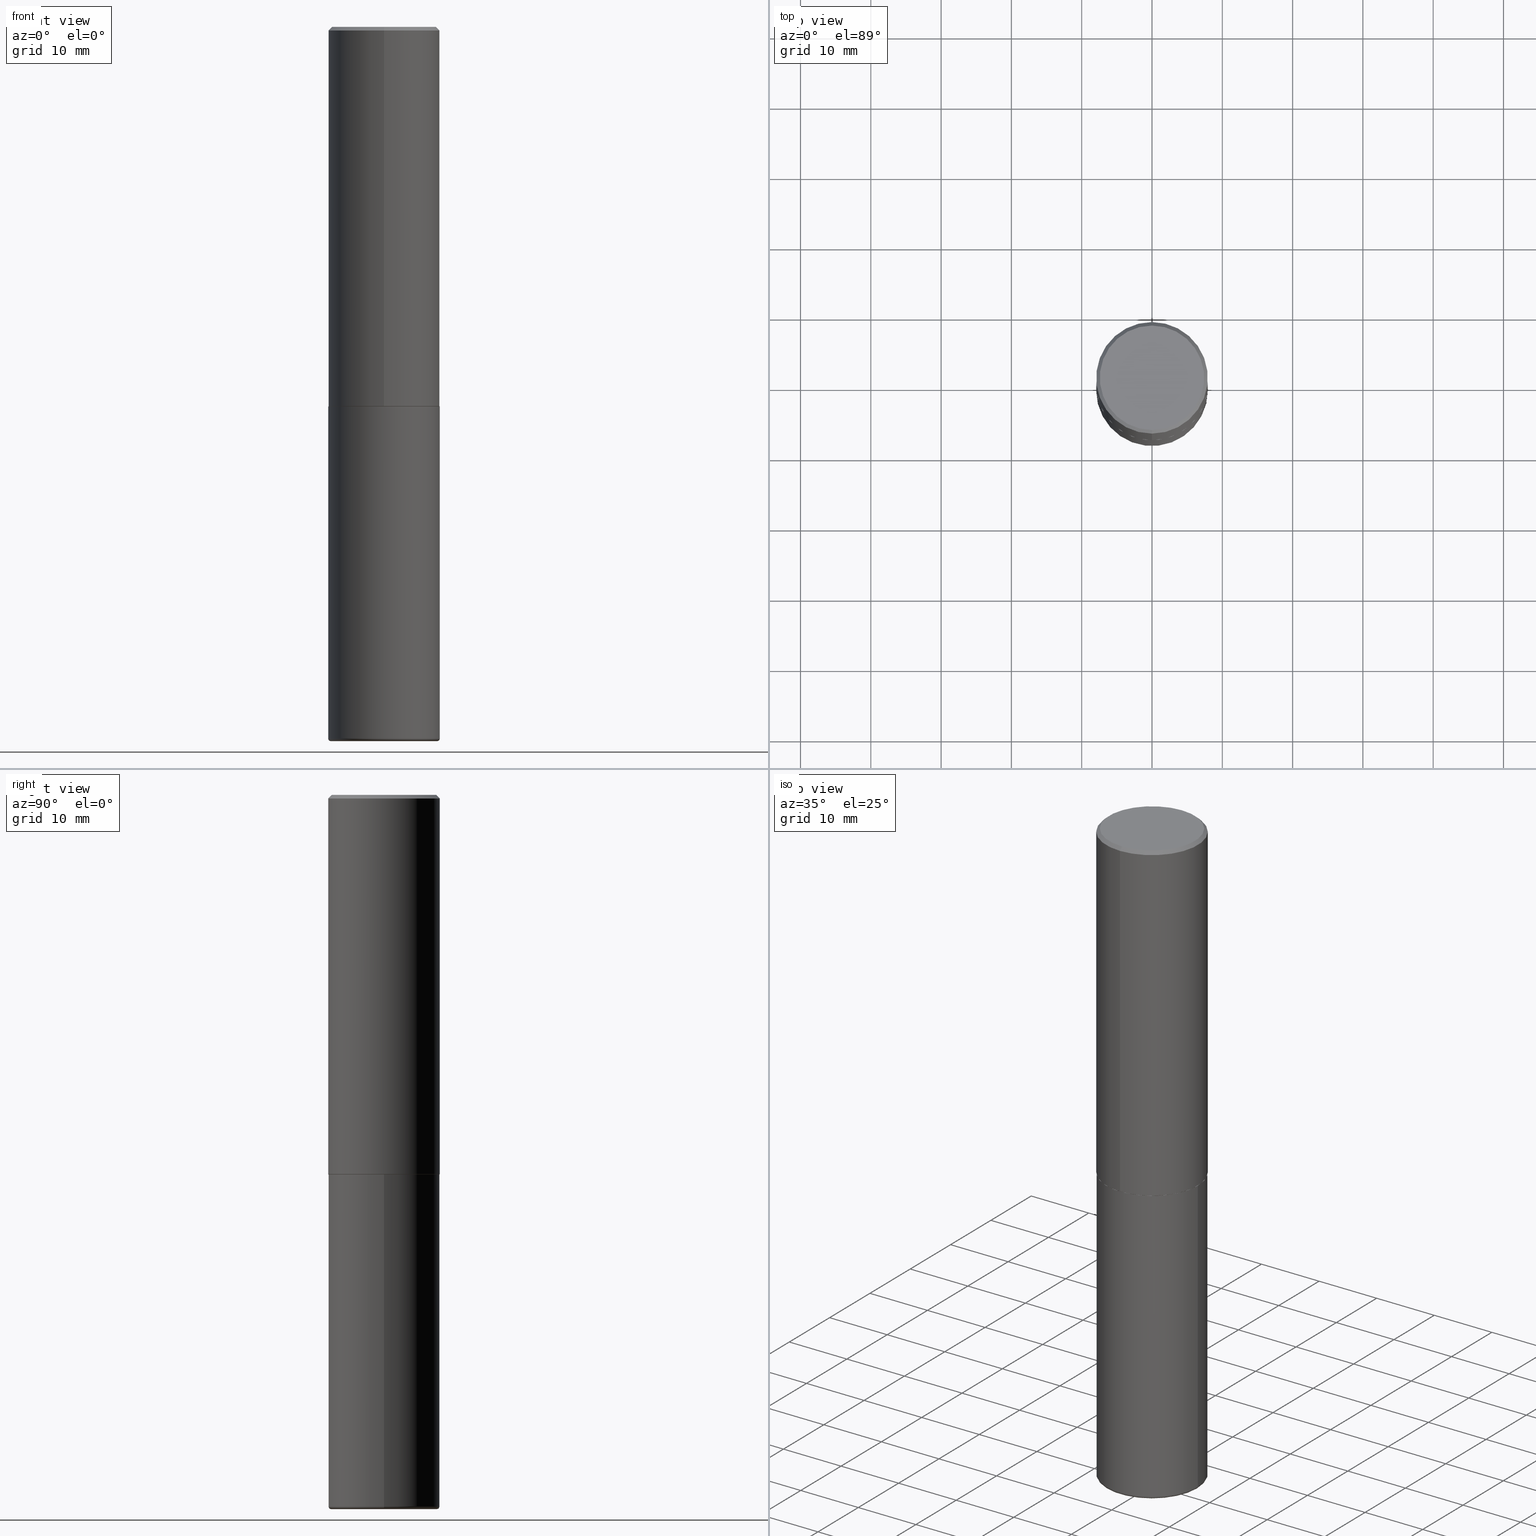
[diagram: canonical four-view strip — front | top / right | iso, engineering-drawing reading convention]
A machine part, canonical four-view strip (front | top / right | iso — engineering-drawing reading convention). The complete STEP part file that produces these views, byte-faithful:
ISO-10303-21;
HEADER;
FILE_DESCRIPTION (( 'STEP AP203' ),
    '1' );
FILE_NAME ('37582.STEP',
    '2024-03-02T04:54:05',
    ( '' ),
    ( '' ),
    'SwSTEP 2.0',
    'SolidWorks 2023',
    '' );
FILE_SCHEMA (( 'CONFIG_CONTROL_DESIGN' ));
ENDSEC;

DATA;
#1 = VERTEX_POINT ( 'NONE', #69 ) ;
#2 = CIRCLE ( 'NONE', #49, 0.3125000000000002776 ) ;
#3 = DIRECTION ( 'NONE',  ( -2.444852431726452894E-29, 3.492364022149836358E-15, 1.000000000000000000 ) ) ;
#4 = EDGE_LOOP ( 'NONE', ( #259, #286, #116, #358 ) ) ;
#5 = DIRECTION ( 'NONE',  ( -6.982962677686265922E-15, -1.000000000000000000, 3.496765431890253764E-15 ) ) ;
#6 = EDGE_CURVE ( 'NONE', #7, #383, #271, .T. ) ;
#7 = VERTEX_POINT ( 'NONE', #266 ) ;
#8 = DIMENSIONAL_EXPONENTS ( 1.000000000000000000, 0.000000000000000000, 0.000000000000000000, 0.000000000000000000, 0.000000000000000000, 0.000000000000000000, 0.000000000000000000 ) ;
#9 = COORDINATED_UNIVERSAL_TIME_OFFSET ( 5, 0, .BEHIND. ) ;
#10 = CARTESIAN_POINT ( 'NONE',  ( 5.195311417418712329E-29, -7.421273547068401324E-15, -2.124999999999999556 ) ) ;
#11 = CARTESIAN_POINT ( 'NONE',  ( 5.195311417418712329E-29, -7.421273547068401324E-15, -2.124999999999999556 ) ) ;
#12 = DATE_AND_TIME ( #269, #65 ) ;
#13 = CIRCLE ( 'NONE', #378, 0.01500000000000014690 ) ;
#14 = DIRECTION ( 'NONE',  ( -1.000000000000000000, 6.982962677686265922E-15, -4.876176775795935793E-29 ) ) ;
#15 = CONICAL_SURFACE ( 'NONE', #272, 0.3114999999999999991, 0.7853981633975507526 ) ;
#16 = APPROVAL ( #373, 'UNSPECIFIED' ) ;
#17 = CALENDAR_DATE ( 2024, 1, 3 ) ;
#18 = CALENDAR_DATE ( 2024, 1, 3 ) ;
#19 = AXIS2_PLACEMENT_3D ( 'NONE', #334, #77, #390 ) ;
#20 = PERSON_AND_ORGANIZATION ( #364, #243 ) ;
#21 = AXIS2_PLACEMENT_3D ( 'NONE', #395, #170, #357 ) ;
#22 = EDGE_CURVE ( 'NONE', #393, #166, #106, .T. ) ;
#23 = LINE ( 'NONE', #318, #400 ) ;
#24 = ORIENTED_EDGE ( 'NONE', *, *, #342, .T. ) ;
#25 = CARTESIAN_POINT ( 'NONE',  ( 4.889704863452922148E-31, -6.984728044299695791E-17, -0.02000000000000006981 ) ) ;
#26 = ORIENTED_EDGE ( 'NONE', *, *, #126, .T. ) ;
#27 = PLANE ( 'NONE',  #337 ) ;
#28 = EDGE_CURVE ( 'NONE', #393, #383, #13, .T. ) ;
#29 = ORIENTED_EDGE ( 'NONE', *, *, #403, .T. ) ;
#30 = CC_DESIGN_APPROVAL ( #398, ( #401 ) ) ;
#31 = DIRECTION ( 'NONE',  ( -2.445468806185136597E-29, 3.491481338843145583E-15, 1.000000000000000000 ) ) ;
#32 = EDGE_LOOP ( 'NONE', ( #43, #88, #132, #147 ) ) ;
#33 = CARTESIAN_POINT ( 'NONE',  ( 0.000000000000000000, 0.000000000000000000, 0.000000000000000000 ) ) ;
#34 = ORIENTED_EDGE ( 'NONE', *, *, #78, .T. ) ;
#35 = CARTESIAN_POINT ( 'NONE',  ( 5.192866564986985411E-29, -7.417781183046251262E-15, -2.123999999999999666 ) ) ;
#36 = DIRECTION ( 'NONE',  ( 1.000000000000000000, -6.982962677686199657E-15, 0.000000000000000000 ) ) ;
#37 = AXIS2_PLACEMENT_3D ( 'NONE', #321, #123, #376 ) ;
#38 = EDGE_CURVE ( 'NONE', #1, #200, #308, .T. ) ;
#39 = UNCERTAINTY_MEASURE_WITH_UNIT (LENGTH_MEASURE( 1.000000000000000082E-05 ), #181, 'distance_accuracy_value', 'NONE');
#40 = CARTESIAN_POINT ( 'NONE',  ( 0.000000000000000000, 0.000000000000000000, 0.000000000000000000 ) ) ;
#41 = CALENDAR_DATE ( 2024, 1, 3 ) ;
#42 = DIRECTION ( 'NONE',  ( 6.982962677686265133E-15, 1.000000000000000000, -3.496765431890256920E-15 ) ) ;
#43 = ORIENTED_EDGE ( 'NONE', *, *, #126, .F. ) ;
#44 = DATE_AND_TIME ( #41, #317 ) ;
#45 = PLANE ( 'NONE',  #108 ) ;
#46 = ADVANCED_FACE ( 'NONE', ( #385 ), #102, .T. ) ;
#47 = APPROVAL_DATE_TIME ( #111, #398 ) ;
#48 = DIRECTION ( 'NONE',  ( -2.444852431726452614E-29, 3.492364022149836358E-15, 1.000000000000000000 ) ) ;
#49 = AXIS2_PLACEMENT_3D ( 'NONE', #365, #275, #5 ) ;
#50 = SECURITY_CLASSIFICATION_LEVEL ( 'unclassified' ) ;
#51 = DATE_AND_TIME ( #215, #387 ) ;
#52 = PERSON_AND_ORGANIZATION ( #364, #243 ) ;
#53 = EDGE_LOOP ( 'NONE', ( #196, #29 ) ) ;
#54 = AXIS2_PLACEMENT_3D ( 'NONE', #238, #173, #329 ) ;
#55 = CONICAL_SURFACE ( 'NONE', #58, 0.3125000000000000000, 0.7853981633974471688 ) ;
#56 = EDGE_CURVE ( 'NONE', #7, #84, #299, .T. ) ;
#57 = CARTESIAN_POINT ( 'NONE',  ( -2.075300644325887493E-15, -0.2924999999999999822, 1.030311686326234990E-15 ) ) ;
#58 = AXIS2_PLACEMENT_3D ( 'NONE', #295, #79, #42 ) ;
#59 = DIRECTION ( 'NONE',  ( 4.937700262164541731E-15, 0.7071067811865442421, -0.7071067811865507924 ) ) ;
#60 = ADVANCED_FACE ( 'NONE', ( #67 ), #76, .T. ) ;
#61 = CARTESIAN_POINT ( 'NONE',  ( 9.781875224740546387E-29, -1.396592535537258233E-14, -4.000000000000000000 ) ) ;
#62 = ORIENTED_EDGE ( 'NONE', *, *, #225, .T. ) ;
#63 = FACE_OUTER_BOUND ( 'NONE', #381, .T. ) ;
#64 = EDGE_LOOP ( 'NONE', ( #129, #356 ) ) ;
#65 = LOCAL_TIME ( 23, 54, 5.000000000000000000, #9 ) ;
#66 = FACE_OUTER_BOUND ( 'NONE', #391, .T. ) ;
#67 = FACE_OUTER_BOUND ( 'NONE', #153, .T. ) ;
#68 = DIRECTION ( 'NONE',  ( -2.444852431726452894E-29, 3.492364022149836358E-15, 1.000000000000000000 ) ) ;
#69 = CARTESIAN_POINT ( 'NONE',  ( 2.216893335571564642E-15, 0.3114999999999925606, -2.125000000000000888 ) ) ;
#70 = CC_DESIGN_PERSON_AND_ORGANIZATION_ASSIGNMENT ( #280, #211, ( #401 ) ) ;
#71 = DIRECTION ( 'NONE',  ( -6.982962677686265133E-15, -1.000000000000000000, 3.492364022149836753E-15 ) ) ;
#72 = VERTEX_POINT ( 'NONE', #343 ) ;
#73 = AXIS2_PLACEMENT_3D ( 'NONE', #249, #154, #312 ) ;
#74 = APPROVAL_PERSON_ORGANIZATION ( #52, #398, #207 ) ;
#75 = CARTESIAN_POINT ( 'NONE',  ( 0.2974999999999999867, -1.604335675198424731E-14, -4.000000000000000000 ) ) ;
#76 = CYLINDRICAL_SURFACE ( 'NONE', #344, 0.3125000000000000000 ) ;
#77 = DIRECTION ( 'NONE',  ( -2.444852431726452894E-29, 3.492364022149836358E-15, 1.000000000000000000 ) ) ;
#78 = EDGE_CURVE ( 'NONE', #168, #233, #23, .T. ) ;
#79 = DIRECTION ( 'NONE',  ( 2.444852431726452894E-29, -3.492364022149836358E-15, -1.000000000000000000 ) ) ;
#80 = AXIS2_PLACEMENT_3D ( 'NONE', #371, #85, #216 ) ;
#81 = PERSON_AND_ORGANIZATION ( #364, #243 ) ;
#82 =( NAMED_UNIT ( * ) PLANE_ANGLE_UNIT ( ) SI_UNIT ( $, .RADIAN. ) );
#83 = EDGE_CURVE ( 'NONE', #339, #245, #223, .T. ) ;
#84 = VERTEX_POINT ( 'NONE', #290 ) ;
#85 = DIRECTION ( 'NONE',  ( 0.000000000000000000, 0.000000000000000000, 1.000000000000000000 ) ) ;
#86 = CIRCLE ( 'NONE', #248, 0.3125000000000002776 ) ;
#87 = CYLINDRICAL_SURFACE ( 'NONE', #386, 0.3125000000000001665 ) ;
#88 = ORIENTED_EDGE ( 'NONE', *, *, #38, .T. ) ;
#89 = DIRECTION ( 'NONE',  ( 6.982962677686265922E-15, 1.000000000000000000, -3.492364022149836358E-15 ) ) ;
#90 = ORIENTED_EDGE ( 'NONE', *, *, #394, .T. ) ;
#91 = DIRECTION ( 'NONE',  ( -2.444852431726452894E-29, 3.492364022149836358E-15, 1.000000000000000000 ) ) ;
#92 = CARTESIAN_POINT ( 'NONE',  ( -0.2974999999999999867, -1.177258390126295229E-14, -4.000000000000000000 ) ) ;
#93 = ORIENTED_EDGE ( 'NONE', *, *, #78, .F. ) ;
#94 = PLANE ( 'NONE',  #37 ) ;
#95 = VERTEX_POINT ( 'NONE', #57 ) ;
#96 = VECTOR ( 'NONE', #291, 39.37007874015748143 ) ;
#97 = AXIS2_PLACEMENT_3D ( 'NONE', #25, #152, #256 ) ;
#98 = CARTESIAN_POINT ( 'NONE',  ( -2.150299018297948745E-46, 3.071607443834507134E-32, 8.795209847407834549E-18 ) ) ;
#99 = APPROVAL ( #309, 'UNSPECIFIED' ) ;
#100 = ORIENTED_EDGE ( 'NONE', *, *, #331, .F. ) ;
#101 = DIRECTION ( 'NONE',  ( 1.000000000000000000, -6.982962677686265133E-15, 0.000000000000000000 ) ) ;
#102 = CYLINDRICAL_SURFACE ( 'NONE', #112, 0.3125000000000001665 ) ;
#103 = COORDINATED_UNIVERSAL_TIME_OFFSET ( 5, 0, .BEHIND. ) ;
#104 = DIRECTION ( 'NONE',  ( -2.445468806185136597E-29, 3.491481338843145583E-15, 1.000000000000000000 ) ) ;
#105 = CARTESIAN_POINT ( 'NONE',  ( 9.745193192647769069E-29, -1.391355313528993407E-14, -3.984999999999999876 ) ) ;
#106 = CIRCLE ( 'NONE', #54, 0.2974999999999999867 ) ;
#107 = ADVANCED_FACE ( 'NONE', ( #127 ), #335, .T. ) ;
#108 = AXIS2_PLACEMENT_3D ( 'NONE', #197, #172, #14 ) ;
#109 = LINE ( 'NONE', #265, #345 ) ;
#110 = CARTESIAN_POINT ( 'NONE',  ( 2.182175836776958741E-15, 0.3124999999999999445, -0.02000000000000116268 ) ) ;
#111 = DATE_AND_TIME ( #18, #328 ) ;
#112 = AXIS2_PLACEMENT_3D ( 'NONE', #40, #235, #171 ) ;
#113 = CIRCLE ( 'NONE', #367, 0.01500000000000014690 ) ;
#114 = ADVANCED_FACE ( 'NONE', ( #156 ), #340, .T. ) ;
#115 = DATE_AND_TIME ( #17, #255 ) ;
#116 = ORIENTED_EDGE ( 'NONE', *, *, #119, .T. ) ;
#117 = APPROVAL_ROLE ( '' ) ;
#118 = SHAPE_DEFINITION_REPRESENTATION ( #262, #273 ) ;
#119 = EDGE_CURVE ( 'NONE', #233, #245, #316, .T. ) ;
#120 = EDGE_LOOP ( 'NONE', ( #162, #349, #319, #251 ) ) ;
#121 = FACE_OUTER_BOUND ( 'NONE', #193, .T. ) ;
#122 = ORIENTED_EDGE ( 'NONE', *, *, #22, .T. ) ;
#123 = DIRECTION ( 'NONE',  ( -2.444852431726452333E-29, 3.492364022149836358E-15, 1.000000000000000000 ) ) ;
#124 = VECTOR ( 'NONE', #408, 39.37007874015748143 ) ;
#125 = CC_DESIGN_APPROVAL ( #99, ( #169 ) ) ;
#126 = EDGE_CURVE ( 'NONE', #1, #72, #285, .T. ) ;
#127 = FACE_OUTER_BOUND ( 'NONE', #120, .T. ) ;
#128 = CARTESIAN_POINT ( 'NONE',  ( -2.143905624303602824E-15, -0.3125000000000000555, -0.01999999999999897693 ) ) ;
#129 = ORIENTED_EDGE ( 'NONE', *, *, #274, .F. ) ;
#130 = CC_DESIGN_DATE_AND_TIME_ASSIGNMENT ( #12, #164, ( #163 ) ) ;
#131 = DIRECTION ( 'NONE',  ( -1.000000000000000000, 6.982962677686265922E-15, -4.876176775795935793E-29 ) ) ;
#132 = ORIENTED_EDGE ( 'NONE', *, *, #144, .T. ) ;
#133 = CLOSED_SHELL ( 'NONE', ( #177, #46, #307, #114, #214, #370, #182, #192 ) ) ;
#134 = AXIS2_PLACEMENT_3D ( 'NONE', #388, #208, #131 ) ;
#135 = DIRECTION ( 'NONE',  ( -6.982962677686265133E-15, -1.000000000000000000, 3.496765431890256920E-15 ) ) ;
#136 = DIRECTION ( 'NONE',  ( -2.444852431726452894E-29, 3.492364022149836358E-15, 1.000000000000000000 ) ) ;
#137 = FACE_OUTER_BOUND ( 'NONE', #369, .T. ) ;
#138 = MANIFOLD_SOLID_BREP ( 'Body-Move/Copy2[1]', #327 ) ;
#139 = DIRECTION ( 'NONE',  ( -2.445468806185136597E-29, 3.491481338843145583E-15, 1.000000000000000000 ) ) ;
#140 = VECTOR ( 'NONE', #188, 39.37007874015748143 ) ;
#141 = DIRECTION ( 'NONE',  ( -2.444852431726452894E-29, 3.492364022149836358E-15, 1.000000000000000000 ) ) ;
#142 = MANIFOLD_SOLID_BREP ( 'Body-Move/Copy2[2]', #133 ) ;
#143 = DATE_TIME_ROLE ( 'classification_date' ) ;
#144 = EDGE_CURVE ( 'NONE', #200, #168, #412, .T. ) ;
#145 = APPROVAL_DATE_TIME ( #51, #99 ) ;
#146 = APPROVAL_PERSON_ORGANIZATION ( #338, #99, #117 ) ;
#147 = ORIENTED_EDGE ( 'NONE', *, *, #342, .F. ) ;
#148 = COORDINATED_UNIVERSAL_TIME_OFFSET ( 5, 0, .BEHIND. ) ;
#149 = APPLICATION_PROTOCOL_DEFINITION ( 'international standard', 'config_control_design', 1994, #213 ) ;
#150 = CIRCLE ( 'NONE', #247, 0.2974999999999999867 ) ;
#151 = CIRCLE ( 'NONE', #372, 0.2924999999999999822 ) ;
#152 = DIRECTION ( 'NONE',  ( -2.444852431726452894E-29, 3.492364022149836358E-15, 1.000000000000000000 ) ) ;
#153 = EDGE_LOOP ( 'NONE', ( #205, #375, #293, #417 ) ) ;
#154 = DIRECTION ( 'NONE',  ( 2.444852431726452894E-29, -3.492364022149836358E-15, -1.000000000000000000 ) ) ;
#155 = EDGE_LOOP ( 'NONE', ( #315, #264, #325, #189 ) ) ;
#156 = FACE_OUTER_BOUND ( 'NONE', #155, .T. ) ;
#157 = TOROIDAL_SURFACE ( 'NONE', #158, 0.2974999999999999867, 0.01500000000000012955 ) ;
#158 = AXIS2_PLACEMENT_3D ( 'NONE', #239, #139, #206 ) ;
#159 = ORIENTED_EDGE ( 'NONE', *, *, #246, .F. ) ;
#160 = LINE ( 'NONE', #128, #361 ) ;
#161 = DESIGN_CONTEXT ( 'detailed design', #213, 'design' ) ;
#162 = ORIENTED_EDGE ( 'NONE', *, *, #359, .F. ) ;
#163 = PRODUCT_DEFINITION ( 'UNKNOWN', '', #401, #161 ) ;
#164 = DATE_TIME_ROLE ( 'creation_date' ) ;
#165 = DIRECTION ( 'NONE',  ( -6.982962677686265133E-15, -1.000000000000000000, 3.492364022149836358E-15 ) ) ;
#166 = VERTEX_POINT ( 'NONE', #92 ) ;
#167 = DIRECTION ( 'NONE',  ( -6.982962677686265922E-15, -1.000000000000000000, 3.496765431890253764E-15 ) ) ;
#168 = VERTEX_POINT ( 'NONE', #226 ) ;
#169 = SECURITY_CLASSIFICATION ( '', '', #50 ) ;
#170 = DIRECTION ( 'NONE',  ( -2.445468806185136597E-29, 3.491481338843145583E-15, 1.000000000000000000 ) ) ;
#171 = DIRECTION ( 'NONE',  ( -6.982962677686265133E-15, -1.000000000000000000, 3.492364022149836358E-15 ) ) ;
#172 = DIRECTION ( 'NONE',  ( 2.438088387897960049E-29, -3.491481338843145188E-15, -1.000000000000000000 ) ) ;
#173 = DIRECTION ( 'NONE',  ( -2.445468806185136597E-29, 3.491481338843145583E-15, 1.000000000000000000 ) ) ;
#174 = CARTESIAN_POINT ( 'NONE',  ( -0.2974999999999999867, -1.179968849640363532E-14, -3.984999999999999876 ) ) ;
#175 = PERSON_AND_ORGANIZATION_ROLE ( 'design_supplier' ) ;
#176 = CARTESIAN_POINT ( 'NONE',  ( 2.112346210000095838E-15, 0.2924999999999999822, -1.012721266631419361E-15 ) ) ;
#177 = ADVANCED_FACE ( 'NONE', ( #121 ), #405, .T. ) ;
#178 =( LENGTH_UNIT ( ) NAMED_UNIT ( * ) SI_UNIT ( $, .METRE. ) );
#179 = COORDINATED_UNIVERSAL_TIME_OFFSET ( 5, 0, .BEHIND. ) ;
#180 = ORIENTED_EDGE ( 'NONE', *, *, #144, .F. ) ;
#181 =( CONVERSION_BASED_UNIT ( 'INCH', #399 ) LENGTH_UNIT ( ) NAMED_UNIT ( #8 ) );
#182 = ADVANCED_FACE ( 'NONE', ( #253 ), #94, .F. ) ;
#183 = CIRCLE ( 'NONE', #230, 0.3114999999999999991 ) ;
#184 = CARTESIAN_POINT ( 'NONE',  ( 4.889704863452922148E-31, -6.984728044299695791E-17, -0.02000000000000006981 ) ) ;
#185 = EDGE_CURVE ( 'NONE', #166, #393, #150, .T. ) ;
#186 = DIRECTION ( 'NONE',  ( -2.445468806185136597E-29, 3.491481338843145583E-15, 1.000000000000000000 ) ) ;
#187 = VERTEX_POINT ( 'NONE', #350 ) ;
#188 = DIRECTION ( 'NONE',  ( -4.937700262165053702E-15, -0.7071067811866175168, 0.7071067811864775177 ) ) ;
#189 = ORIENTED_EDGE ( 'NONE', *, *, #218, .T. ) ;
#190 = CARTESIAN_POINT ( 'NONE',  ( -2.175192874099219874E-15, -0.3115000000000074376, -2.124999999999998668 ) ) ;
#191 = CIRCLE ( 'NONE', #19, 0.2924999999999999822 ) ;
#192 = ADVANCED_FACE ( 'NONE', ( #63 ), #27, .F. ) ;
#193 = EDGE_LOOP ( 'NONE', ( #406, #26, #351, #180 ) ) ;
#194 = CARTESIAN_POINT ( 'NONE',  ( 5.195311417418712329E-29, -7.421273547068401324E-15, -2.124999999999999556 ) ) ;
#195 = PRODUCT ( '37582', '37582', '', ( #276 ) ) ;
#196 = ORIENTED_EDGE ( 'NONE', *, *, #209, .T. ) ;
#197 = CARTESIAN_POINT ( 'NONE',  ( 9.781875224740546387E-29, -1.396592535537258233E-14, -4.000000000000000000 ) ) ;
#198 = CARTESIAN_POINT ( 'NONE',  ( 0.2974999999999999867, -1.599098453190160062E-14, -3.984999999999999876 ) ) ;
#199 = DIRECTION ( 'NONE',  ( -6.982962677686265922E-15, -1.000000000000000000, 3.507991003100177457E-15 ) ) ;
#200 = VERTEX_POINT ( 'NONE', #190 ) ;
#201 = AXIS2_PLACEMENT_3D ( 'NONE', #346, #186, #382 ) ;
#202 = AXIS2_PLACEMENT_3D ( 'NONE', #392, #104, #101 ) ;
#203 = EDGE_CURVE ( 'NONE', #95, #233, #160, .T. ) ;
#204 = CARTESIAN_POINT ( 'NONE',  ( 0.000000000000000000, 0.000000000000000000, 0.000000000000000000 ) ) ;
#205 = ORIENTED_EDGE ( 'NONE', *, *, #56, .F. ) ;
#206 = DIRECTION ( 'NONE',  ( 1.000000000000000000, -6.982962677686265922E-15, 4.883557194083112340E-29 ) ) ;
#207 = APPROVAL_ROLE ( '' ) ;
#208 = DIRECTION ( 'NONE',  ( 2.438088387897960049E-29, -3.491481338843145188E-15, -1.000000000000000000 ) ) ;
#209 = EDGE_CURVE ( 'NONE', #187, #84, #277, .T. ) ;
#210 = AXIS2_PLACEMENT_3D ( 'NONE', #184, #217, #135 ) ;
#211 = PERSON_AND_ORGANIZATION_ROLE ( 'creator' ) ;
#212 = PERSON_AND_ORGANIZATION ( #364, #243 ) ;
#213 = APPLICATION_CONTEXT ( 'configuration controlled 3d designs of mechanical parts and assemblies' ) ;
#214 = ADVANCED_FACE ( 'NONE', ( #66 ), #87, .T. ) ;
#215 = CALENDAR_DATE ( 2024, 1, 3 ) ;
#216 = DIRECTION ( 'NONE',  ( 1.000000000000000000, 0.000000000000000000, 0.000000000000000000 ) ) ;
#217 = DIRECTION ( 'NONE',  ( -2.444852431726452894E-29, 3.492364022149836358E-15, 1.000000000000000000 ) ) ;
#218 = EDGE_CURVE ( 'NONE', #245, #233, #287, .T. ) ;
#219 = APPROVAL_ROLE ( '' ) ;
#220 = VECTOR ( 'NONE', #59, 39.37007874015748143 ) ;
#221 = DIRECTION ( 'NONE',  ( 1.000000000000000000, -6.982962677686266711E-15, 4.876176775795936353E-29 ) ) ;
#222 = ORIENTED_EDGE ( 'NONE', *, *, #28, .F. ) ;
#223 = LINE ( 'NONE', #288, #220 ) ;
#224 = EDGE_LOOP ( 'NONE', ( #90, #347, #284, #93 ) ) ;
#225 = EDGE_CURVE ( 'NONE', #339, #95, #151, .T. ) ;
#226 = CARTESIAN_POINT ( 'NONE',  ( -2.182175836776908254E-15, -0.3125000000000077161, -2.123999999999998334 ) ) ;
#227 = ORIENTED_EDGE ( 'NONE', *, *, #218, .F. ) ;
#228 = CARTESIAN_POINT ( 'NONE',  ( 5.196621213143414147E-29, -7.419397845041682046E-15, -2.124999999999999556 ) ) ;
#229 = AXIS2_PLACEMENT_3D ( 'NONE', #194, #91, #283 ) ;
#230 = AXIS2_PLACEMENT_3D ( 'NONE', #10, #141, #199 ) ;
#231 = ORIENTED_EDGE ( 'NONE', *, *, #257, .F. ) ;
#232 = FACE_OUTER_BOUND ( 'NONE', #4, .T. ) ;
#233 = VERTEX_POINT ( 'NONE', #366 ) ;
#234 = DIRECTION ( 'NONE',  ( 7.105427357601001859E-15, 1.000000000000000000, -3.491481338843145583E-15 ) ) ;
#235 = DIRECTION ( 'NONE',  ( -2.444852431726452894E-29, 3.492364022149836358E-15, 1.000000000000000000 ) ) ;
#236 = APPROVAL_DATE_TIME ( #44, #16 ) ;
#237 = FACE_OUTER_BOUND ( 'NONE', #402, .T. ) ;
#238 = CARTESIAN_POINT ( 'NONE',  ( 9.781875224740546387E-29, -1.396592535537258233E-14, -4.000000000000000000 ) ) ;
#239 = CARTESIAN_POINT ( 'NONE',  ( 9.745193192647769069E-29, -1.391355313528993407E-14, -3.984999999999999876 ) ) ;
#240 = DIRECTION ( 'NONE',  ( -2.444852431726452894E-29, 3.492364022149836358E-15, 1.000000000000000000 ) ) ;
#241 = CC_DESIGN_PERSON_AND_ORGANIZATION_ASSIGNMENT ( #212, #407, ( #195 ) ) ;
#242 = AXIS2_PLACEMENT_3D ( 'NONE', #11, #136, #354 ) ;
#243 = ORGANIZATION ( 'UNSPECIFIED', 'UNSPECIFIED', '' ) ;
#244 =( NAMED_UNIT ( * ) SI_UNIT ( $, .STERADIAN. ) SOLID_ANGLE_UNIT ( ) );
#245 = VERTEX_POINT ( 'NONE', #110 ) ;
#246 = EDGE_CURVE ( 'NONE', #383, #7, #304, .T. ) ;
#247 = AXIS2_PLACEMENT_3D ( 'NONE', #61, #31, #313 ) ;
#248 = AXIS2_PLACEMENT_3D ( 'NONE', #35, #3, #167 ) ;
#249 = CARTESIAN_POINT ( 'NONE',  ( 4.889704863452922148E-31, -6.984728044299695791E-17, -0.02000000000000006981 ) ) ;
#250 = CC_DESIGN_PERSON_AND_ORGANIZATION_ASSIGNMENT ( #20, #281, ( #169 ) ) ;
#251 = ORIENTED_EDGE ( 'NONE', *, *, #6, .F. ) ;
#252 = APPLICATION_CONTEXT ( 'configuration controlled 3d designs of mechanical parts and assemblies' ) ;
#253 = FACE_OUTER_BOUND ( 'NONE', #64, .T. ) ;
#254 = ORIENTED_EDGE ( 'NONE', *, *, #185, .F. ) ;
#255 = LOCAL_TIME ( 23, 54, 5.000000000000000000, #404 ) ;
#256 = DIRECTION ( 'NONE',  ( -6.982962677686265133E-15, -1.000000000000000000, 3.496765431890256920E-15 ) ) ;
#257 = EDGE_CURVE ( 'NONE', #383, #187, #109, .T. ) ;
#258 = CARTESIAN_POINT ( 'NONE',  ( 2.213340621892763743E-15, 0.3114999999999925606, -2.125000000000000888 ) ) ;
#259 = ORIENTED_EDGE ( 'NONE', *, *, #294, .F. ) ;
#260 = DIRECTION ( 'NONE',  ( -4.851104656540957964E-15, -0.7071067811865491270, -0.7071067811865459074 ) ) ;
#261 = DIRECTION ( 'NONE',  ( -2.445468806185136597E-29, 3.491481338843145583E-15, 1.000000000000000000 ) ) ;
#262 = PRODUCT_DEFINITION_SHAPE ( 'NONE', 'NONE',  #163 ) ;
#263 = FACE_OUTER_BOUND ( 'NONE', #289, .T. ) ;
#264 = ORIENTED_EDGE ( 'NONE', *, *, #225, .F. ) ;
#265 = CARTESIAN_POINT ( 'NONE',  ( 0.3125000000000000000, -2.182175836776958347E-15, 1.523805242436230075E-29 ) ) ;
#266 = CARTESIAN_POINT ( 'NONE',  ( -0.3125000000000000555, -1.169310708603962099E-14, -3.984999999999999876 ) ) ;
#267 = DIRECTION ( 'NONE',  ( -6.982962677686265922E-15, -1.000000000000000000, 3.507991003100177457E-15 ) ) ;
#268 = ORIENTED_EDGE ( 'NONE', *, *, #22, .F. ) ;
#269 = CALENDAR_DATE ( 2024, 1, 3 ) ;
#270 = CARTESIAN_POINT ( 'NONE',  ( 2.220446049250313475E-15, 0.3125000000000001665, -1.091363756921824478E-15 ) ) ;
#271 = CIRCLE ( 'NONE', #282, 0.3125000000000000000 ) ;
#272 = AXIS2_PLACEMENT_3D ( 'NONE', #333, #240, #267 ) ;
#273 = ADVANCED_BREP_SHAPE_REPRESENTATION ( '37582', ( #138, #142, #80 ), #341 ) ;
#274 = EDGE_CURVE ( 'NONE', #200, #1, #183, .T. ) ;
#275 = DIRECTION ( 'NONE',  ( -2.444852431726452894E-29, 3.492364022149836358E-15, 1.000000000000000000 ) ) ;
#276 = MECHANICAL_CONTEXT ( 'NONE', #252, 'mechanical' ) ;
#277 = CIRCLE ( 'NONE', #411, 0.3125000000000000000 ) ;
#278 = APPROVAL_PERSON_ORGANIZATION ( #415, #16, #219 ) ;
#279 = ADVANCED_FACE ( 'NONE', ( #137 ), #157, .T. ) ;
#280 = PERSON_AND_ORGANIZATION ( #364, #243 ) ;
#281 = PERSON_AND_ORGANIZATION_ROLE ( 'classification_officer' ) ;
#282 = AXIS2_PLACEMENT_3D ( 'NONE', #105, #261, #332 ) ;
#283 = DIRECTION ( 'NONE',  ( -6.982962677686265922E-15, -1.000000000000000000, 3.507991003100177457E-15 ) ) ;
#284 = ORIENTED_EDGE ( 'NONE', *, *, #119, .F. ) ;
#285 = LINE ( 'NONE', #258, #124 ) ;
#286 = ORIENTED_EDGE ( 'NONE', *, *, #203, .T. ) ;
#287 = CIRCLE ( 'NONE', #210, 0.3125000000000000000 ) ;
#288 = CARTESIAN_POINT ( 'NONE',  ( 2.182175836776958741E-15, 0.3124999999999999445, -0.02000000000000116268 ) ) ;
#289 = EDGE_LOOP ( 'NONE', ( #268, #254 ) ) ;
#290 = CARTESIAN_POINT ( 'NONE',  ( -0.3125000000000000000, -8.446029440915494976E-15, -2.124999999999999556 ) ) ;
#291 = DIRECTION ( 'NONE',  ( -2.445468806185136877E-29, 3.491481338843145188E-15, 1.000000000000000000 ) ) ;
#292 = DIRECTION ( 'NONE',  ( -2.445468806185136597E-29, 3.491481338843145583E-15, 1.000000000000000000 ) ) ;
#293 = ORIENTED_EDGE ( 'NONE', *, *, #257, .T. ) ;
#294 = EDGE_CURVE ( 'NONE', #95, #339, #191, .T. ) ;
#295 = CARTESIAN_POINT ( 'NONE',  ( 4.889704863452922148E-31, -6.984728044299695791E-17, -0.02000000000000006981 ) ) ;
#296 = VECTOR ( 'NONE', #48, 39.37007874015748143 ) ;
#297 = ORIENTED_EDGE ( 'NONE', *, *, #294, .T. ) ;
#298 = FACE_OUTER_BOUND ( 'NONE', #53, .T. ) ;
#299 = LINE ( 'NONE', #363, #96 ) ;
#300 = PERSON_AND_ORGANIZATION ( #364, #243 ) ;
#301 = DIRECTION ( 'NONE',  ( 1.000000000000000000, -6.982962677686266711E-15, 4.876176775795936353E-29 ) ) ;
#302 = DIRECTION ( 'NONE',  ( -6.982962677686266711E-15, -1.000000000000000000, 3.491481338843145583E-15 ) ) ;
#303 = FACE_OUTER_BOUND ( 'NONE', #32, .T. ) ;
#304 = CIRCLE ( 'NONE', #21, 0.3125000000000000000 ) ;
#305 = DIRECTION ( 'NONE',  ( -1.000000000000000000, 7.105427357601050768E-15, 0.000000000000000000 ) ) ;
#306 = APPROVAL_STATUS ( 'not_yet_approved' ) ;
#307 = ADVANCED_FACE ( 'NONE', ( #232 ), #55, .T. ) ;
#308 = CIRCLE ( 'NONE', #242, 0.3114999999999999991 ) ;
#309 = APPROVAL_STATUS ( 'not_yet_approved' ) ;
#310 = APPLICATION_PROTOCOL_DEFINITION ( 'international standard', 'config_control_design', 1994, #252 ) ;
#311 = CARTESIAN_POINT ( 'NONE',  ( 0.000000000000000000, 0.000000000000000000, 0.000000000000000000 ) ) ;
#312 = DIRECTION ( 'NONE',  ( 6.982962677686265133E-15, 1.000000000000000000, -3.496765431890256920E-15 ) ) ;
#313 = DIRECTION ( 'NONE',  ( 1.000000000000000000, -6.982962677686269077E-15, 0.000000000000000000 ) ) ;
#314 = ADVANCED_FACE ( 'NONE', ( #298 ), #326, .F. ) ;
#315 = ORIENTED_EDGE ( 'NONE', *, *, #203, .F. ) ;
#316 = CIRCLE ( 'NONE', #97, 0.3125000000000000000 ) ;
#317 = LOCAL_TIME ( 23, 54, 5.000000000000000000, #103 ) ;
#318 = CARTESIAN_POINT ( 'NONE',  ( -2.182175836776959136E-15, -0.3125000000000001665, 1.091363756921824478E-15 ) ) ;
#319 = ORIENTED_EDGE ( 'NONE', *, *, #28, .T. ) ;
#320 = PERSON_AND_ORGANIZATION_ROLE ( 'creator' ) ;
#321 = CARTESIAN_POINT ( 'NONE',  ( 5.195311417418712329E-29, -7.421273547068401324E-15, -2.124999999999999556 ) ) ;
#322 = ORIENTED_EDGE ( 'NONE', *, *, #246, .T. ) ;
#323 = CC_DESIGN_PERSON_AND_ORGANIZATION_ASSIGNMENT ( #81, #175, ( #401 ) ) ;
#324 = CARTESIAN_POINT ( 'NONE',  ( 0.3125000000000000555, -1.609572897206689399E-14, -3.984999999999999876 ) ) ;
#325 = ORIENTED_EDGE ( 'NONE', *, *, #83, .T. ) ;
#326 = PLANE ( 'NONE',  #134 ) ;
#327 = CLOSED_SHELL ( 'NONE', ( #414, #279, #314, #60, #107, #377 ) ) ;
#328 = LOCAL_TIME ( 23, 54, 5.000000000000000000, #179 ) ;
#329 = DIRECTION ( 'NONE',  ( 1.000000000000000000, -6.982962677686269077E-15, 0.000000000000000000 ) ) ;
#330 = DIRECTION ( 'NONE',  ( -2.445468806185136597E-29, 3.491481338843145583E-15, 1.000000000000000000 ) ) ;
#331 = EDGE_CURVE ( 'NONE', #72, #245, #355, .T. ) ;
#332 = DIRECTION ( 'NONE',  ( 1.000000000000000000, -6.982962677686269077E-15, 0.000000000000000000 ) ) ;
#333 = CARTESIAN_POINT ( 'NONE',  ( 5.195311417418712329E-29, -7.421273547068401324E-15, -2.124999999999999556 ) ) ;
#334 = CARTESIAN_POINT ( 'NONE',  ( -2.150299018297948745E-46, 3.071607443834507134E-32, 8.795209847407834549E-18 ) ) ;
#335 = TOROIDAL_SURFACE ( 'NONE', #201, 0.2974999999999999867, 0.01500000000000012955 ) ;
#336 = CC_DESIGN_SECURITY_CLASSIFICATION ( #169, ( #401 ) ) ;
#337 = AXIS2_PLACEMENT_3D ( 'NONE', #384, #416, #89 ) ;
#338 = PERSON_AND_ORGANIZATION ( #364, #243 ) ;
#339 = VERTEX_POINT ( 'NONE', #176 ) ;
#340 = CONICAL_SURFACE ( 'NONE', #73, 0.3125000000000000000, 0.7853981633974471688 ) ;
#341 =( GEOMETRIC_REPRESENTATION_CONTEXT ( 3 ) GLOBAL_UNCERTAINTY_ASSIGNED_CONTEXT ( ( #39 ) ) GLOBAL_UNIT_ASSIGNED_CONTEXT ( ( #181, #82, #244 ) ) REPRESENTATION_CONTEXT ( 'NONE', 'WORKASPACE' ) );
#342 = EDGE_CURVE ( 'NONE', #72, #168, #2, .T. ) ;
#343 = CARTESIAN_POINT ( 'NONE',  ( 2.220446049250340297E-15, 0.3124999999999928391, -2.124000000000000554 ) ) ;
#344 = AXIS2_PLACEMENT_3D ( 'NONE', #311, #292, #221 ) ;
#345 = VECTOR ( 'NONE', #397, 39.37007874015748143 ) ;
#346 = CARTESIAN_POINT ( 'NONE',  ( 9.745193192647769069E-29, -1.391355313528993407E-14, -3.984999999999999876 ) ) ;
#347 = ORIENTED_EDGE ( 'NONE', *, *, #331, .T. ) ;
#348 = DIRECTION ( 'NONE',  ( -2.444852431726452614E-29, 3.492364022149836358E-15, 1.000000000000000000 ) ) ;
#349 = ORIENTED_EDGE ( 'NONE', *, *, #185, .T. ) ;
#350 = CARTESIAN_POINT ( 'NONE',  ( 0.3125000000000000000, -9.601573681818640393E-15, -2.124999999999999556 ) ) ;
#351 = ORIENTED_EDGE ( 'NONE', *, *, #394, .F. ) ;
#352 = DIRECTION ( 'NONE',  ( 1.000000000000000000, -6.982962677686265133E-15, 0.000000000000000000 ) ) ;
#353 = CC_DESIGN_PERSON_AND_ORGANIZATION_ASSIGNMENT ( #300, #320, ( #163 ) ) ;
#354 = DIRECTION ( 'NONE',  ( -6.982962677686265922E-15, -1.000000000000000000, 3.507991003100177457E-15 ) ) ;
#355 = LINE ( 'NONE', #270, #296 ) ;
#356 = ORIENTED_EDGE ( 'NONE', *, *, #38, .F. ) ;
#357 = DIRECTION ( 'NONE',  ( 1.000000000000000000, -6.982962677686269077E-15, 0.000000000000000000 ) ) ;
#358 = ORIENTED_EDGE ( 'NONE', *, *, #83, .F. ) ;
#359 = EDGE_CURVE ( 'NONE', #166, #7, #113, .T. ) ;
#360 = CYLINDRICAL_SURFACE ( 'NONE', #362, 0.3125000000000000000 ) ;
#361 = VECTOR ( 'NONE', #260, 39.37007874015748143 ) ;
#362 = AXIS2_PLACEMENT_3D ( 'NONE', #204, #330, #301 ) ;
#363 = CARTESIAN_POINT ( 'NONE',  ( -0.3125000000000000000, 2.220446049250313081E-15, -1.537167215704658232E-29 ) ) ;
#364 = PERSON ( 'UNSPECIFIED', 'UNSPECIFIED', 'UNSPECIFIED', ('UNSPECIFIED'), ('UNSPECIFIED'), ('UNSPECIFIED') ) ;
#365 = CARTESIAN_POINT ( 'NONE',  ( 5.192866564986985411E-29, -7.417781183046251262E-15, -2.123999999999999666 ) ) ;
#366 = CARTESIAN_POINT ( 'NONE',  ( -2.143905624303602824E-15, -0.3125000000000000555, -0.01999999999999897693 ) ) ;
#367 = AXIS2_PLACEMENT_3D ( 'NONE', #174, #234, #305 ) ;
#368 = PRODUCT_RELATED_PRODUCT_CATEGORY ( 'detail', '', ( #195 ) ) ;
#369 = EDGE_LOOP ( 'NONE', ( #122, #410, #159, #222 ) ) ;
#370 = ADVANCED_FACE ( 'NONE', ( #303 ), #15, .T. ) ;
#371 = CARTESIAN_POINT ( 'NONE',  ( 0.000000000000000000, 0.000000000000000000, 0.000000000000000000 ) ) ;
#372 = AXIS2_PLACEMENT_3D ( 'NONE', #98, #68, #71 ) ;
#373 = APPROVAL_STATUS ( 'not_yet_approved' ) ;
#374 = DIRECTION ( 'NONE',  ( -2.444852431726452894E-29, 3.492364022149836358E-15, 1.000000000000000000 ) ) ;
#375 = ORIENTED_EDGE ( 'NONE', *, *, #6, .T. ) ;
#376 = DIRECTION ( 'NONE',  ( -6.982962677686265922E-15, -1.000000000000000000, 3.492364022149836358E-15 ) ) ;
#377 = ADVANCED_FACE ( 'NONE', ( #263 ), #45, .T. ) ;
#378 = AXIS2_PLACEMENT_3D ( 'NONE', #198, #302, #36 ) ;
#379 = CIRCLE ( 'NONE', #202, 0.3125000000000000000 ) ;
#380 = CARTESIAN_POINT ( 'NONE',  ( -2.175192874099219874E-15, -0.3115000000000074376, -2.124999999999998668 ) ) ;
#381 = EDGE_LOOP ( 'NONE', ( #62, #297 ) ) ;
#382 = DIRECTION ( 'NONE',  ( 1.000000000000000000, -6.982962677686265922E-15, 4.883557194083112340E-29 ) ) ;
#383 = VERTEX_POINT ( 'NONE', #324 ) ;
#384 = CARTESIAN_POINT ( 'NONE',  ( 2.042516583223232540E-15, 0.2924999999999999822, -1.017118871555123169E-15 ) ) ;
#385 = FACE_OUTER_BOUND ( 'NONE', #224, .T. ) ;
#386 = AXIS2_PLACEMENT_3D ( 'NONE', #33, #374, #165 ) ;
#387 = LOCAL_TIME ( 23, 54, 5.000000000000000000, #148 ) ;
#388 = CARTESIAN_POINT ( 'NONE',  ( 5.196621213143414147E-29, -7.419397845041682046E-15, -2.124999999999999556 ) ) ;
#389 = ORIENTED_EDGE ( 'NONE', *, *, #209, .F. ) ;
#390 = DIRECTION ( 'NONE',  ( -6.982962677686265133E-15, -1.000000000000000000, 3.492364022149836753E-15 ) ) ;
#391 = EDGE_LOOP ( 'NONE', ( #100, #24, #34, #227 ) ) ;
#392 = CARTESIAN_POINT ( 'NONE',  ( 5.196621213143414147E-29, -7.419397845041682046E-15, -2.124999999999999556 ) ) ;
#393 = VERTEX_POINT ( 'NONE', #75 ) ;
#394 = EDGE_CURVE ( 'NONE', #168, #72, #86, .T. ) ;
#395 = CARTESIAN_POINT ( 'NONE',  ( 9.745193192647769069E-29, -1.391355313528993407E-14, -3.984999999999999876 ) ) ;
#396 = CC_DESIGN_APPROVAL ( #16, ( #163 ) ) ;
#397 = DIRECTION ( 'NONE',  ( -2.445468806185136877E-29, 3.491481338843145188E-15, 1.000000000000000000 ) ) ;
#398 = APPROVAL ( #306, 'UNSPECIFIED' ) ;
#399 = LENGTH_MEASURE_WITH_UNIT ( LENGTH_MEASURE( 0.02539999999999999897 ), #178 );
#400 = VECTOR ( 'NONE', #348, 39.37007874015748143 ) ;
#401 = PRODUCT_DEFINITION_FORMATION_WITH_SPECIFIED_SOURCE ( 'ANY', '', #195, .NOT_KNOWN. ) ;
#402 = EDGE_LOOP ( 'NONE', ( #322, #413, #389, #231 ) ) ;
#403 = EDGE_CURVE ( 'NONE', #84, #187, #379, .T. ) ;
#404 = COORDINATED_UNIVERSAL_TIME_OFFSET ( 5, 0, .BEHIND. ) ;
#405 = CONICAL_SURFACE ( 'NONE', #229, 0.3114999999999999991, 0.7853981633975507526 ) ;
#406 = ORIENTED_EDGE ( 'NONE', *, *, #274, .T. ) ;
#407 = PERSON_AND_ORGANIZATION_ROLE ( 'design_owner' ) ;
#408 = DIRECTION ( 'NONE',  ( 5.024295867788576727E-15, 0.7071067811866224018, 0.7071067811864726327 ) ) ;
#409 = CC_DESIGN_DATE_AND_TIME_ASSIGNMENT ( #115, #143, ( #169 ) ) ;
#410 = ORIENTED_EDGE ( 'NONE', *, *, #359, .T. ) ;
#411 = AXIS2_PLACEMENT_3D ( 'NONE', #228, #418, #352 ) ;
#412 = LINE ( 'NONE', #380, #140 ) ;
#413 = ORIENTED_EDGE ( 'NONE', *, *, #56, .T. ) ;
#414 = ADVANCED_FACE ( 'NONE', ( #237 ), #360, .T. ) ;
#415 = PERSON_AND_ORGANIZATION ( #364, #243 ) ;
#416 = DIRECTION ( 'NONE',  ( 2.444852431726452333E-29, -3.492364022149836358E-15, -1.000000000000000000 ) ) ;
#417 = ORIENTED_EDGE ( 'NONE', *, *, #403, .F. ) ;
#418 = DIRECTION ( 'NONE',  ( -2.445468806185136597E-29, 3.491481338843145583E-15, 1.000000000000000000 ) ) ;
ENDSEC;
END-ISO-10303-21;
